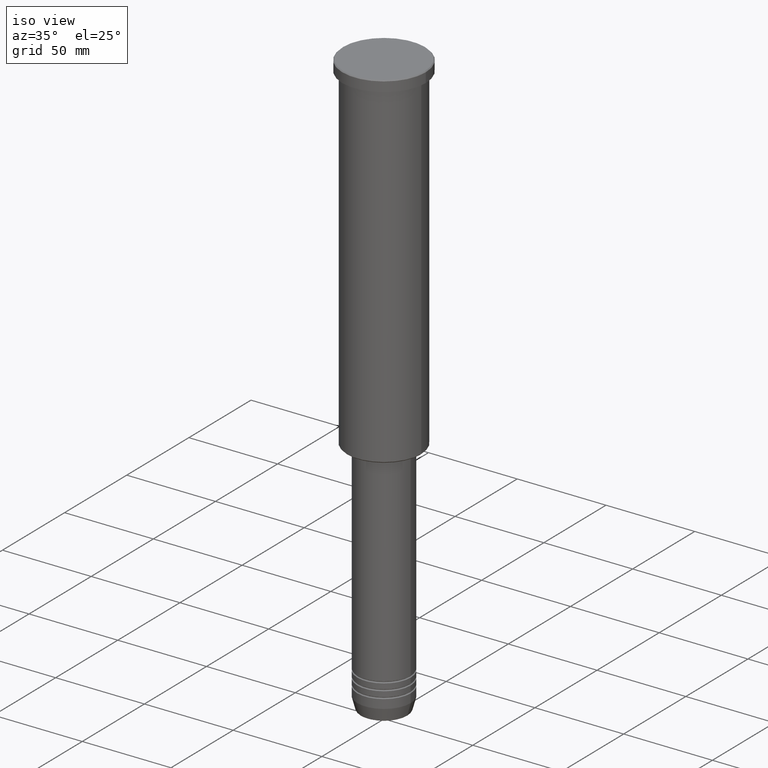
[diagram: clean part render]
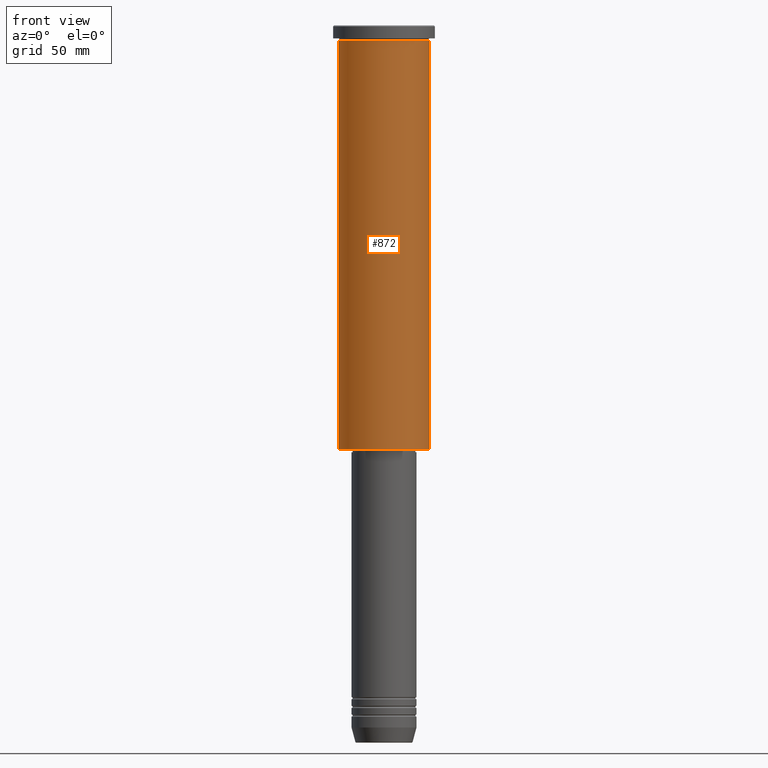
[diagram: tour spotlight — one face highlighted and labeled with its STEP entity id]
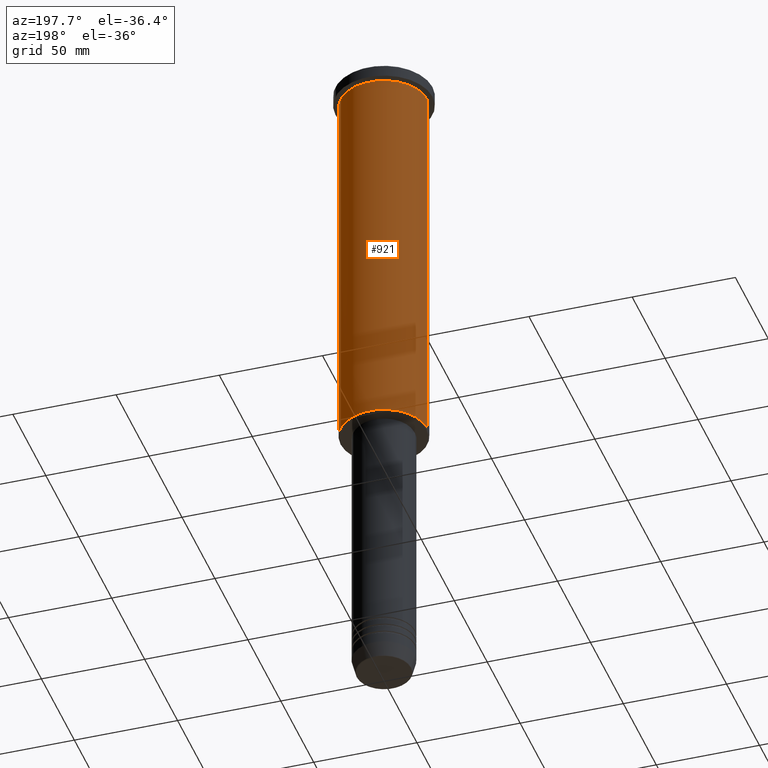
[diagram: tour spotlight — one face highlighted and labeled with its STEP entity id]
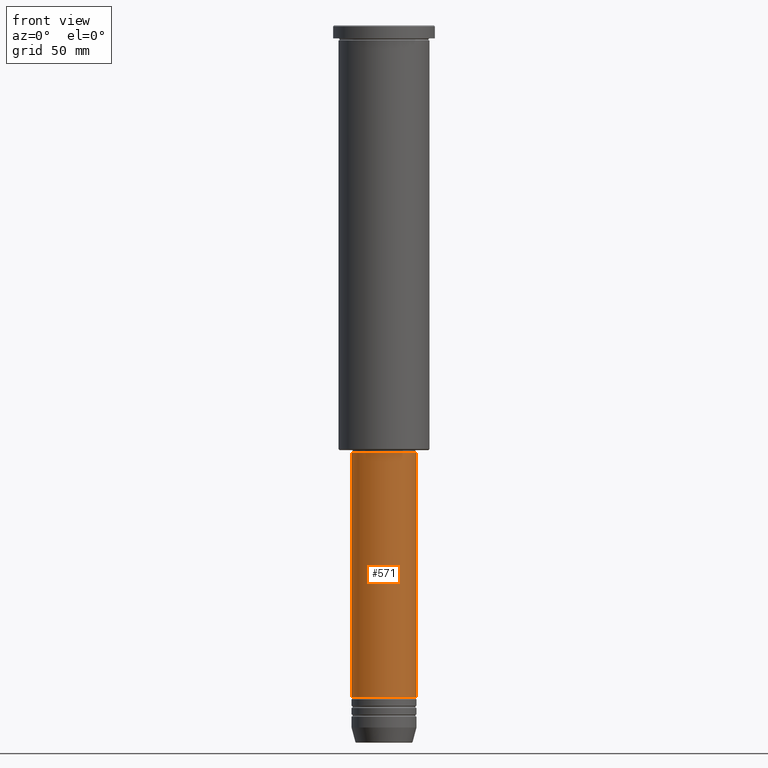
[diagram: tour spotlight — one face highlighted and labeled with its STEP entity id]
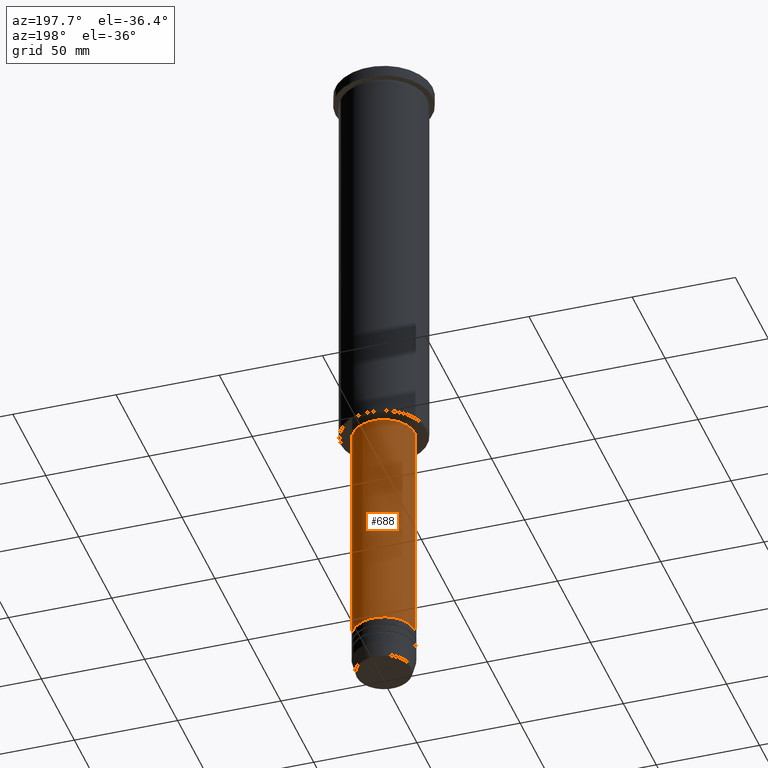
[diagram: tour spotlight — one face highlighted and labeled with its STEP entity id]
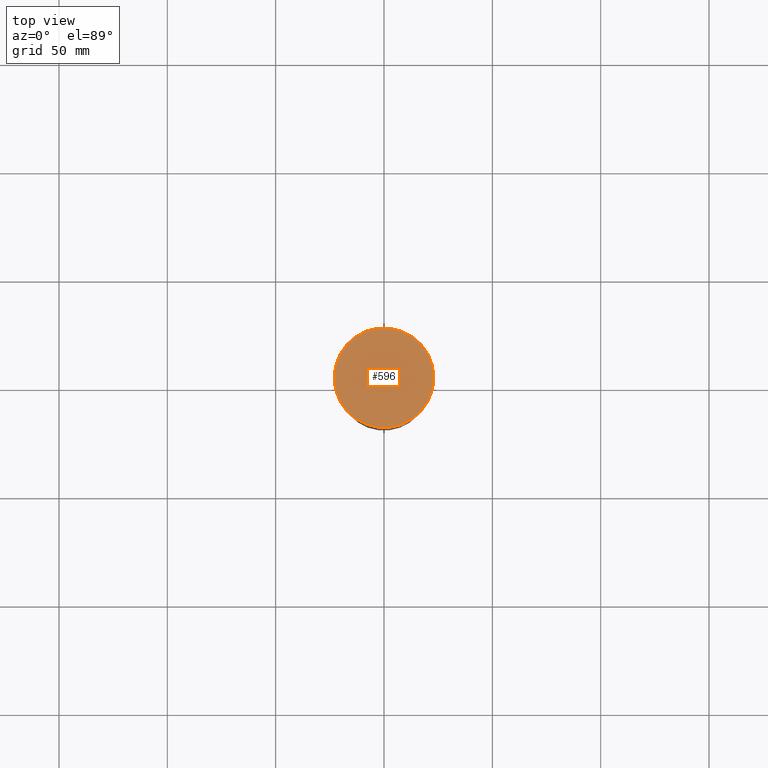
[diagram: tour spotlight — one face highlighted and labeled with its STEP entity id]
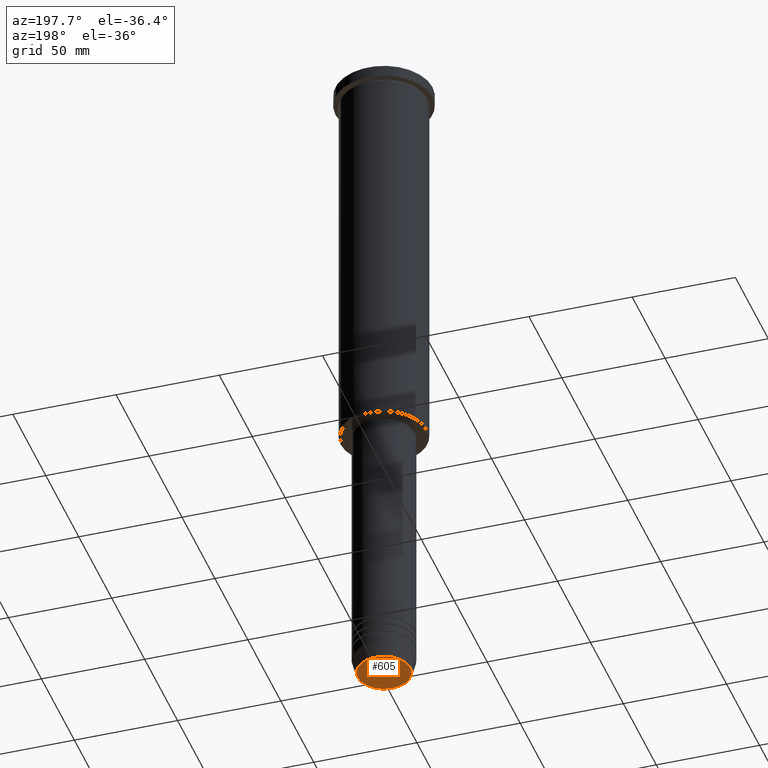
[diagram: tour spotlight — one face highlighted and labeled with its STEP entity id]
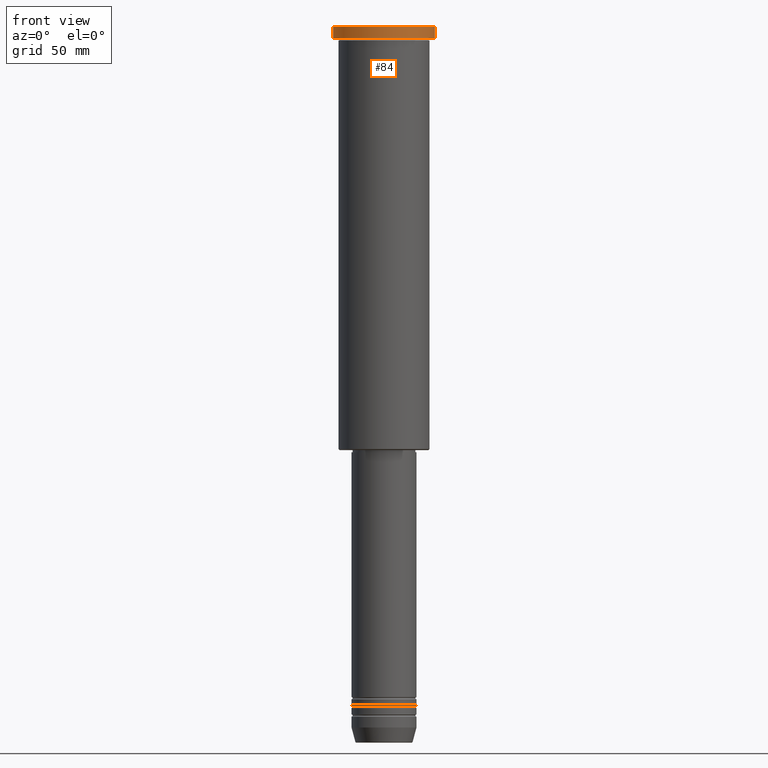
[diagram: tour spotlight — one face highlighted and labeled with its STEP entity id]
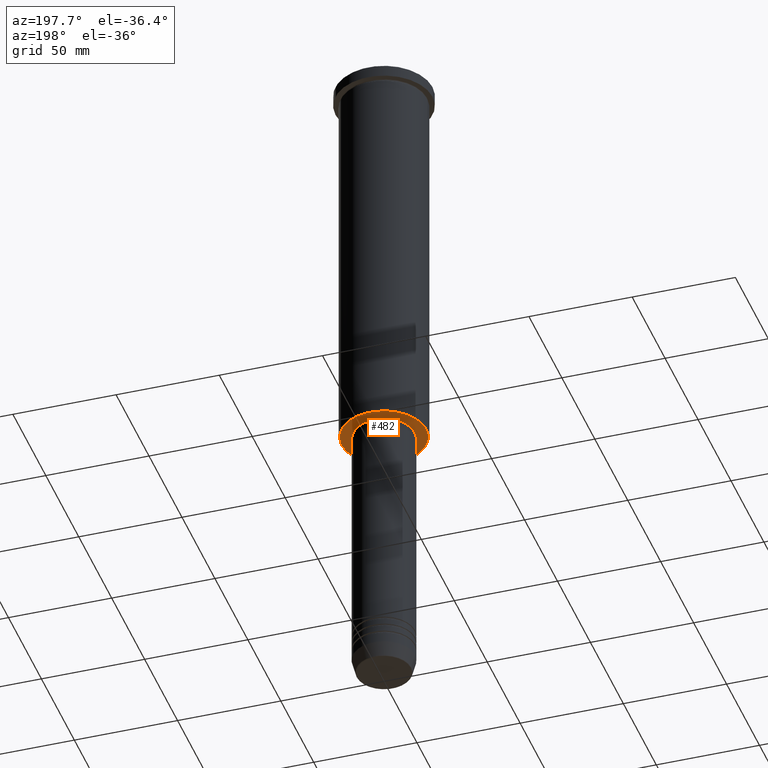
[diagram: tour spotlight — one face highlighted and labeled with its STEP entity id]
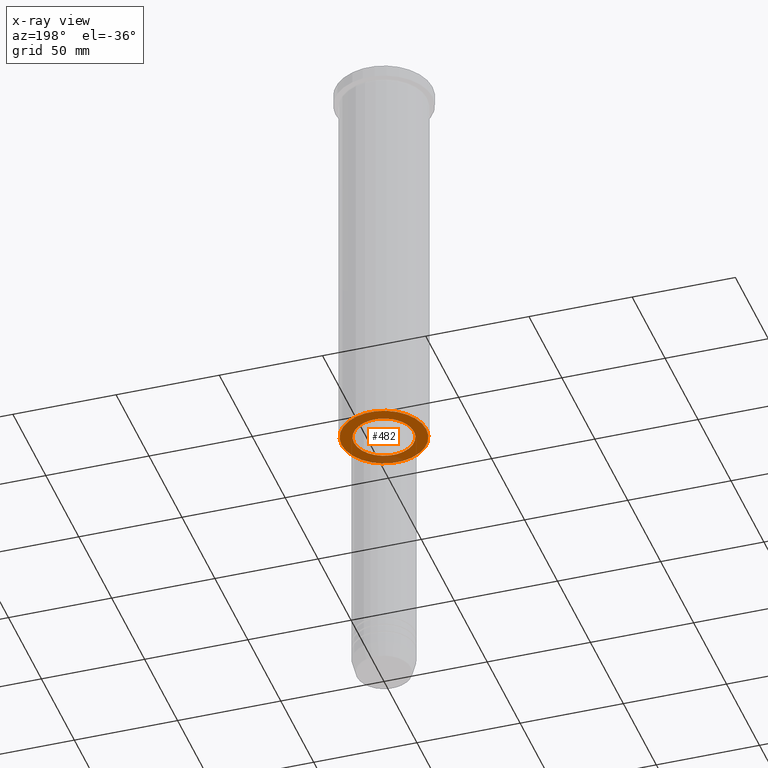
[diagram: x-ray of the same camera — body ghosted, this tour face saturated]
A machine part: a face-by-face anatomy tour. The part has 43 B-rep faces; the first image is the clean iso view, then the 8 largest visible faces are spotlighted one at a time (largest first), each with its STEP entity span.

Face 1 — front view, entity #872. In plain terms, the highlighted cylindrical surface (partial cylindrical patch) has radius 21 mm, axis along (-0, -0, 1).
Definition (entity closure, byte-faithful):
#26 = CARTESIAN_POINT ( 'NONE',  ( -21.00000000000000000, 2.571758278209441661E-15, -195.4999999999999432 ) ) ;
#58 = CYLINDRICAL_SURFACE ( 'NONE', #744, 21.00000000000000000 ) ;
#130 = AXIS2_PLACEMENT_3D ( 'NONE', #673, #389, #746 ) ;
#185 = VERTEX_POINT ( 'NONE', #660 ) ;
#189 = VECTOR ( 'NONE', #779, 1000.000000000000000 ) ;
#324 = FACE_OUTER_BOUND ( 'NONE', #1116, .T. ) ;
#359 = LINE ( 'NONE', #431, #189 ) ;
#389 = DIRECTION ( 'NONE',  ( -0.000000000000000000, -0.000000000000000000, 1.000000000000000000 ) ) ;
#403 = CARTESIAN_POINT ( 'NONE',  ( 21.00000000000000000, 0.000000000000000000, -195.4999999999999432 ) ) ;
#422 = LINE ( 'NONE', #800, #1109 ) ;
#431 = CARTESIAN_POINT ( 'NONE',  ( 21.00000000000000000, 0.000000000000000000, 0.000000000000000000 ) ) ;
#461 = DIRECTION ( 'NONE',  ( -0.000000000000000000, -0.000000000000000000, 1.000000000000000000 ) ) ;
#515 = EDGE_CURVE ( 'NONE', #630, #185, #359, .T. ) ;
#531 = CARTESIAN_POINT ( 'NONE',  ( 0.000000000000000000, 0.000000000000000000, -195.4999999999999432 ) ) ;
#583 = CARTESIAN_POINT ( 'NONE',  ( -21.00000000000000000, 2.571758278209441661E-15, -6.999999999999993783 ) ) ;
#599 = CARTESIAN_POINT ( 'NONE',  ( 0.000000000000000000, 0.000000000000000000, 0.000000000000000000 ) ) ;
#630 = VERTEX_POINT ( 'NONE', #403 ) ;
#655 = CIRCLE ( 'NONE', #1030, 21.00000000000000000 ) ;
#660 = CARTESIAN_POINT ( 'NONE',  ( 21.00000000000000000, 0.000000000000000000, -6.999999999999993783 ) ) ;
#673 = CARTESIAN_POINT ( 'NONE',  ( 0.000000000000000000, 0.000000000000000000, -6.999999999999993783 ) ) ;
#695 = ORIENTED_EDGE ( 'NONE', *, *, #1140, .T. ) ;
#713 = ORIENTED_EDGE ( 'NONE', *, *, #515, .T. ) ;
#744 = AXIS2_PLACEMENT_3D ( 'NONE', #599, #782, #947 ) ;
#746 = DIRECTION ( 'NONE',  ( 1.000000000000000000, 0.000000000000000000, 0.000000000000000000 ) ) ;
#761 = EDGE_CURVE ( 'NONE', #939, #988, #422, .T. ) ;
#779 = DIRECTION ( 'NONE',  ( -0.000000000000000000, -0.000000000000000000, 1.000000000000000000 ) ) ;
#782 = DIRECTION ( 'NONE',  ( -0.000000000000000000, -0.000000000000000000, 1.000000000000000000 ) ) ;
#800 = CARTESIAN_POINT ( 'NONE',  ( -21.00000000000000000, 2.571758278209441661E-15, 0.000000000000000000 ) ) ;
#872 = ADVANCED_FACE ( 'NONE', ( #324 ), #58, .T. ) ;
#898 = ORIENTED_EDGE ( 'NONE', *, *, #761, .F. ) ;
#939 = VERTEX_POINT ( 'NONE', #26 ) ;
#947 = DIRECTION ( 'NONE',  ( 1.000000000000000000, 0.000000000000000000, 0.000000000000000000 ) ) ;
#966 = EDGE_CURVE ( 'NONE', #988, #185, #1009, .T. ) ;
#979 = ORIENTED_EDGE ( 'NONE', *, *, #966, .F. ) ;
#988 = VERTEX_POINT ( 'NONE', #583 ) ;
#1009 = CIRCLE ( 'NONE', #130, 21.00000000000000000 ) ;
#1030 = AXIS2_PLACEMENT_3D ( 'NONE', #531, #1074, #1053 ) ;
#1053 = DIRECTION ( 'NONE',  ( -1.000000000000000000, 0.000000000000000000, 0.000000000000000000 ) ) ;
#1074 = DIRECTION ( 'NONE',  ( -0.000000000000000000, -0.000000000000000000, 1.000000000000000000 ) ) ;
#1109 = VECTOR ( 'NONE', #461, 1000.000000000000000 ) ;
#1116 = EDGE_LOOP ( 'NONE', ( #898, #695, #713, #979 ) ) ;
#1140 = EDGE_CURVE ( 'NONE', #939, #630, #655, .T. ) ;

Face 2 — auxiliary view, entity #921. In plain terms, the highlighted cylindrical surface (partial cylindrical patch) has radius 21 mm, axis along (-0, -0, 1).
Definition (entity closure, byte-faithful):
#26 = CARTESIAN_POINT ( 'NONE',  ( -21.00000000000000000, 2.571758278209441661E-15, -195.4999999999999432 ) ) ;
#90 = ORIENTED_EDGE ( 'NONE', *, *, #955, .F. ) ;
#108 = EDGE_LOOP ( 'NONE', ( #513, #888, #90, #244 ) ) ;
#185 = VERTEX_POINT ( 'NONE', #660 ) ;
#189 = VECTOR ( 'NONE', #779, 1000.000000000000000 ) ;
#244 = ORIENTED_EDGE ( 'NONE', *, *, #515, .F. ) ;
#258 = DIRECTION ( 'NONE',  ( -0.000000000000000000, -0.000000000000000000, 1.000000000000000000 ) ) ;
#299 = DIRECTION ( 'NONE',  ( -0.000000000000000000, -0.000000000000000000, 1.000000000000000000 ) ) ;
#346 = DIRECTION ( 'NONE',  ( -0.000000000000000000, -0.000000000000000000, 1.000000000000000000 ) ) ;
#359 = LINE ( 'NONE', #431, #189 ) ;
#361 = FACE_OUTER_BOUND ( 'NONE', #108, .T. ) ;
#403 = CARTESIAN_POINT ( 'NONE',  ( 21.00000000000000000, 0.000000000000000000, -195.4999999999999432 ) ) ;
#422 = LINE ( 'NONE', #800, #1109 ) ;
#431 = CARTESIAN_POINT ( 'NONE',  ( 21.00000000000000000, 0.000000000000000000, 0.000000000000000000 ) ) ;
#461 = DIRECTION ( 'NONE',  ( -0.000000000000000000, -0.000000000000000000, 1.000000000000000000 ) ) ;
#502 = EDGE_CURVE ( 'NONE', #630, #939, #1132, .T. ) ;
#513 = ORIENTED_EDGE ( 'NONE', *, *, #502, .T. ) ;
#515 = EDGE_CURVE ( 'NONE', #630, #185, #359, .T. ) ;
#583 = CARTESIAN_POINT ( 'NONE',  ( -21.00000000000000000, 2.571758278209441661E-15, -6.999999999999993783 ) ) ;
#629 = DIRECTION ( 'NONE',  ( -1.000000000000000000, 0.000000000000000000, 0.000000000000000000 ) ) ;
#630 = VERTEX_POINT ( 'NONE', #403 ) ;
#657 = CARTESIAN_POINT ( 'NONE',  ( 0.000000000000000000, 0.000000000000000000, -6.999999999999993783 ) ) ;
#660 = CARTESIAN_POINT ( 'NONE',  ( 21.00000000000000000, 0.000000000000000000, -6.999999999999993783 ) ) ;
#672 = AXIS2_PLACEMENT_3D ( 'NONE', #657, #299, #1125 ) ;
#761 = EDGE_CURVE ( 'NONE', #939, #988, #422, .T. ) ;
#779 = DIRECTION ( 'NONE',  ( -0.000000000000000000, -0.000000000000000000, 1.000000000000000000 ) ) ;
#800 = CARTESIAN_POINT ( 'NONE',  ( -21.00000000000000000, 2.571758278209441661E-15, 0.000000000000000000 ) ) ;
#814 = DIRECTION ( 'NONE',  ( 1.000000000000000000, 0.000000000000000000, 0.000000000000000000 ) ) ;
#875 = CIRCLE ( 'NONE', #672, 21.00000000000000000 ) ;
#878 = AXIS2_PLACEMENT_3D ( 'NONE', #968, #258, #629 ) ;
#888 = ORIENTED_EDGE ( 'NONE', *, *, #761, .T. ) ;
#921 = ADVANCED_FACE ( 'NONE', ( #361 ), #1165, .T. ) ;
#939 = VERTEX_POINT ( 'NONE', #26 ) ;
#955 = EDGE_CURVE ( 'NONE', #185, #988, #875, .T. ) ;
#968 = CARTESIAN_POINT ( 'NONE',  ( 0.000000000000000000, 0.000000000000000000, -195.4999999999999432 ) ) ;
#988 = VERTEX_POINT ( 'NONE', #583 ) ;
#995 = CARTESIAN_POINT ( 'NONE',  ( 0.000000000000000000, 0.000000000000000000, 0.000000000000000000 ) ) ;
#1029 = AXIS2_PLACEMENT_3D ( 'NONE', #995, #346, #814 ) ;
#1109 = VECTOR ( 'NONE', #461, 1000.000000000000000 ) ;
#1125 = DIRECTION ( 'NONE',  ( 1.000000000000000000, 0.000000000000000000, 0.000000000000000000 ) ) ;
#1132 = CIRCLE ( 'NONE', #878, 21.00000000000000000 ) ;
#1165 = CYLINDRICAL_SURFACE ( 'NONE', #1029, 21.00000000000000000 ) ;

Face 3 — front view, entity #571. In plain terms, the highlighted cylindrical surface (edge-blend (fillet) strip) has radius 15 mm, axis along (-0, -0, 1).
Definition (entity closure, byte-faithful):
#3 = AXIS2_PLACEMENT_3D ( 'NONE', #470, #20, #938 ) ;
#20 = DIRECTION ( 'NONE',  ( -0.000000000000000000, -0.000000000000000000, 1.000000000000000000 ) ) ;
#35 = EDGE_CURVE ( 'NONE', #103, #869, #990, .T. ) ;
#43 = CARTESIAN_POINT ( 'NONE',  ( 15.00000000000000000, 0.000000000000000000, -309.9999999999999432 ) ) ;
#61 = LINE ( 'NONE', #492, #896 ) ;
#103 = VERTEX_POINT ( 'NONE', #908 ) ;
#138 = VERTEX_POINT ( 'NONE', #469 ) ;
#147 = CARTESIAN_POINT ( 'NONE',  ( 15.00000000000000000, 0.000000000000000000, 0.000000000000000000 ) ) ;
#178 = CARTESIAN_POINT ( 'NONE',  ( 0.000000000000000000, 0.000000000000000000, 0.000000000000000000 ) ) ;
#188 = DIRECTION ( 'NONE',  ( -0.000000000000000000, -0.000000000000000000, 1.000000000000000000 ) ) ;
#207 = DIRECTION ( 'NONE',  ( 1.000000000000000000, 0.000000000000000000, 0.000000000000000000 ) ) ;
#255 = ORIENTED_EDGE ( 'NONE', *, *, #450, .T. ) ;
#262 = LINE ( 'NONE', #147, #724 ) ;
#303 = CIRCLE ( 'NONE', #3, 15.00000000000000000 ) ;
#408 = AXIS2_PLACEMENT_3D ( 'NONE', #178, #754, #668 ) ;
#445 = ORIENTED_EDGE ( 'NONE', *, *, #960, .F. ) ;
#450 = EDGE_CURVE ( 'NONE', #869, #138, #262, .T. ) ;
#469 = CARTESIAN_POINT ( 'NONE',  ( 15.00000000000000000, 0.000000000000000000, -196.9999999999999147 ) ) ;
#470 = CARTESIAN_POINT ( 'NONE',  ( 0.000000000000000000, 0.000000000000000000, -196.9999999999999147 ) ) ;
#477 = CARTESIAN_POINT ( 'NONE',  ( 0.000000000000000000, 0.000000000000000000, -309.9999999999999432 ) ) ;
#492 = CARTESIAN_POINT ( 'NONE',  ( -15.00000000000000000, 1.836970198721029589E-15, 0.000000000000000000 ) ) ;
#539 = AXIS2_PLACEMENT_3D ( 'NONE', #477, #1026, #207 ) ;
#555 = FACE_OUTER_BOUND ( 'NONE', #1141, .T. ) ;
#571 = ADVANCED_FACE ( 'NONE', ( #555 ), #808, .T. ) ;
#668 = DIRECTION ( 'NONE',  ( 1.000000000000000000, 0.000000000000000000, 0.000000000000000000 ) ) ;
#720 = VERTEX_POINT ( 'NONE', #768 ) ;
#724 = VECTOR ( 'NONE', #1063, 1000.000000000000000 ) ;
#754 = DIRECTION ( 'NONE',  ( -0.000000000000000000, -0.000000000000000000, 1.000000000000000000 ) ) ;
#768 = CARTESIAN_POINT ( 'NONE',  ( -15.00000000000000000, 1.836970198721029589E-15, -196.9999999999999147 ) ) ;
#803 = ORIENTED_EDGE ( 'NONE', *, *, #933, .F. ) ;
#808 = CYLINDRICAL_SURFACE ( 'NONE', #408, 15.00000000000000000 ) ;
#869 = VERTEX_POINT ( 'NONE', #43 ) ;
#896 = VECTOR ( 'NONE', #188, 1000.000000000000000 ) ;
#908 = CARTESIAN_POINT ( 'NONE',  ( -15.00000000000000000, 1.836970198721029589E-15, -309.9999999999999432 ) ) ;
#933 = EDGE_CURVE ( 'NONE', #103, #720, #61, .T. ) ;
#938 = DIRECTION ( 'NONE',  ( 1.000000000000000000, 0.000000000000000000, 0.000000000000000000 ) ) ;
#960 = EDGE_CURVE ( 'NONE', #720, #138, #303, .T. ) ;
#990 = CIRCLE ( 'NONE', #539, 15.00000000000000000 ) ;
#1026 = DIRECTION ( 'NONE',  ( -0.000000000000000000, -0.000000000000000000, 1.000000000000000000 ) ) ;
#1063 = DIRECTION ( 'NONE',  ( -0.000000000000000000, -0.000000000000000000, 1.000000000000000000 ) ) ;
#1134 = ORIENTED_EDGE ( 'NONE', *, *, #35, .T. ) ;
#1141 = EDGE_LOOP ( 'NONE', ( #803, #1134, #255, #445 ) ) ;

Face 4 — auxiliary view, entity #688. In plain terms, the highlighted cylindrical surface (edge-blend (fillet) strip) has radius 15 mm, axis along (-0, -0, 1).
Definition (entity closure, byte-faithful):
#43 = CARTESIAN_POINT ( 'NONE',  ( 15.00000000000000000, 0.000000000000000000, -309.9999999999999432 ) ) ;
#61 = LINE ( 'NONE', #492, #896 ) ;
#99 = ORIENTED_EDGE ( 'NONE', *, *, #393, .F. ) ;
#103 = VERTEX_POINT ( 'NONE', #908 ) ;
#127 = AXIS2_PLACEMENT_3D ( 'NONE', #377, #1102, #275 ) ;
#138 = VERTEX_POINT ( 'NONE', #469 ) ;
#147 = CARTESIAN_POINT ( 'NONE',  ( 15.00000000000000000, 0.000000000000000000, 0.000000000000000000 ) ) ;
#188 = DIRECTION ( 'NONE',  ( -0.000000000000000000, -0.000000000000000000, 1.000000000000000000 ) ) ;
#216 = EDGE_LOOP ( 'NONE', ( #874, #920, #99, #810 ) ) ;
#238 = CYLINDRICAL_SURFACE ( 'NONE', #282, 15.00000000000000000 ) ;
#262 = LINE ( 'NONE', #147, #724 ) ;
#266 = EDGE_CURVE ( 'NONE', #869, #103, #967, .T. ) ;
#275 = DIRECTION ( 'NONE',  ( 1.000000000000000000, 0.000000000000000000, 0.000000000000000000 ) ) ;
#282 = AXIS2_PLACEMENT_3D ( 'NONE', #1148, #1057, #514 ) ;
#377 = CARTESIAN_POINT ( 'NONE',  ( 0.000000000000000000, 0.000000000000000000, -309.9999999999999432 ) ) ;
#393 = EDGE_CURVE ( 'NONE', #138, #720, #1127, .T. ) ;
#450 = EDGE_CURVE ( 'NONE', #869, #138, #262, .T. ) ;
#469 = CARTESIAN_POINT ( 'NONE',  ( 15.00000000000000000, 0.000000000000000000, -196.9999999999999147 ) ) ;
#492 = CARTESIAN_POINT ( 'NONE',  ( -15.00000000000000000, 1.836970198721029589E-15, 0.000000000000000000 ) ) ;
#514 = DIRECTION ( 'NONE',  ( 1.000000000000000000, 0.000000000000000000, 0.000000000000000000 ) ) ;
#688 = ADVANCED_FACE ( 'NONE', ( #884 ), #238, .T. ) ;
#712 = DIRECTION ( 'NONE',  ( 1.000000000000000000, 0.000000000000000000, 0.000000000000000000 ) ) ;
#720 = VERTEX_POINT ( 'NONE', #768 ) ;
#724 = VECTOR ( 'NONE', #1063, 1000.000000000000000 ) ;
#768 = CARTESIAN_POINT ( 'NONE',  ( -15.00000000000000000, 1.836970198721029589E-15, -196.9999999999999147 ) ) ;
#770 = AXIS2_PLACEMENT_3D ( 'NONE', #854, #978, #712 ) ;
#810 = ORIENTED_EDGE ( 'NONE', *, *, #450, .F. ) ;
#854 = CARTESIAN_POINT ( 'NONE',  ( 0.000000000000000000, 0.000000000000000000, -196.9999999999999147 ) ) ;
#869 = VERTEX_POINT ( 'NONE', #43 ) ;
#874 = ORIENTED_EDGE ( 'NONE', *, *, #266, .T. ) ;
#884 = FACE_OUTER_BOUND ( 'NONE', #216, .T. ) ;
#896 = VECTOR ( 'NONE', #188, 1000.000000000000000 ) ;
#908 = CARTESIAN_POINT ( 'NONE',  ( -15.00000000000000000, 1.836970198721029589E-15, -309.9999999999999432 ) ) ;
#920 = ORIENTED_EDGE ( 'NONE', *, *, #933, .T. ) ;
#933 = EDGE_CURVE ( 'NONE', #103, #720, #61, .T. ) ;
#967 = CIRCLE ( 'NONE', #127, 15.00000000000000000 ) ;
#978 = DIRECTION ( 'NONE',  ( -0.000000000000000000, -0.000000000000000000, 1.000000000000000000 ) ) ;
#1057 = DIRECTION ( 'NONE',  ( -0.000000000000000000, -0.000000000000000000, 1.000000000000000000 ) ) ;
#1063 = DIRECTION ( 'NONE',  ( -0.000000000000000000, -0.000000000000000000, 1.000000000000000000 ) ) ;
#1102 = DIRECTION ( 'NONE',  ( -0.000000000000000000, -0.000000000000000000, 1.000000000000000000 ) ) ;
#1127 = CIRCLE ( 'NONE', #770, 15.00000000000000000 ) ;
#1148 = CARTESIAN_POINT ( 'NONE',  ( 0.000000000000000000, 0.000000000000000000, 0.000000000000000000 ) ) ;

Face 5 — top view, entity #596. In plain terms, the highlighted planar face has unit normal (0, -0, 1).
Definition (entity closure, byte-faithful):
#7 = PLANE ( 'NONE',  #240 ) ;
#56 = DIRECTION ( 'NONE',  ( -0.000000000000000000, -0.000000000000000000, 1.000000000000000000 ) ) ;
#68 = ORIENTED_EDGE ( 'NONE', *, *, #1096, .T. ) ;
#72 = AXIS2_PLACEMENT_3D ( 'NONE', #181, #1098, #725 ) ;
#181 = CARTESIAN_POINT ( 'NONE',  ( 0.000000000000000000, 0.000000000000000000, 0.000000000000000000 ) ) ;
#240 = AXIS2_PLACEMENT_3D ( 'NONE', #728, #1129, #497 ) ;
#376 = ORIENTED_EDGE ( 'NONE', *, *, #786, .T. ) ;
#388 = AXIS2_PLACEMENT_3D ( 'NONE', #412, #56, #425 ) ;
#412 = CARTESIAN_POINT ( 'NONE',  ( 0.000000000000000000, 0.000000000000000000, 0.000000000000000000 ) ) ;
#425 = DIRECTION ( 'NONE',  ( 1.000000000000000000, 0.000000000000000000, 0.000000000000000000 ) ) ;
#489 = CARTESIAN_POINT ( 'NONE',  ( -23.00000000000002487, 0.000000000000000000, 0.000000000000000000 ) ) ;
#497 = DIRECTION ( 'NONE',  ( 1.000000000000000000, 0.000000000000000000, 0.000000000000000000 ) ) ;
#550 = VERTEX_POINT ( 'NONE', #489 ) ;
#557 = EDGE_LOOP ( 'NONE', ( #376, #68 ) ) ;
#582 = CIRCLE ( 'NONE', #388, 23.00000000000002487 ) ;
#596 = ADVANCED_FACE ( 'NONE', ( #1027 ), #7, .T. ) ;
#598 = CIRCLE ( 'NONE', #72, 23.00000000000002487 ) ;
#611 = CARTESIAN_POINT ( 'NONE',  ( 23.00000000000002487, 2.847303808017597717E-15, 0.000000000000000000 ) ) ;
#641 = VERTEX_POINT ( 'NONE', #611 ) ;
#725 = DIRECTION ( 'NONE',  ( 1.000000000000000000, 0.000000000000000000, 0.000000000000000000 ) ) ;
#728 = CARTESIAN_POINT ( 'NONE',  ( 0.000000000000000000, 0.000000000000000000, 0.000000000000000000 ) ) ;
#786 = EDGE_CURVE ( 'NONE', #550, #641, #598, .T. ) ;
#1027 = FACE_OUTER_BOUND ( 'NONE', #557, .T. ) ;
#1096 = EDGE_CURVE ( 'NONE', #641, #550, #582, .T. ) ;
#1098 = DIRECTION ( 'NONE',  ( -0.000000000000000000, -0.000000000000000000, 1.000000000000000000 ) ) ;
#1129 = DIRECTION ( 'NONE',  ( 0.000000000000000000, -0.000000000000000000, 1.000000000000000000 ) ) ;

Face 6 — auxiliary view, entity #605. In plain terms, the highlighted planar face has unit normal (0, -0, 1).
Definition (entity closure, byte-faithful):
#57 = ORIENTED_EDGE ( 'NONE', *, *, #248, .T. ) ;
#60 = EDGE_LOOP ( 'NONE', ( #57, #942 ) ) ;
#245 = AXIS2_PLACEMENT_3D ( 'NONE', #906, #273, #850 ) ;
#248 = EDGE_CURVE ( 'NONE', #639, #570, #594, .T. ) ;
#273 = DIRECTION ( 'NONE',  ( 0.000000000000000000, -0.000000000000000000, 1.000000000000000000 ) ) ;
#363 = DIRECTION ( 'NONE',  ( 0.000000000000000000, 0.000000000000000000, -1.000000000000000000 ) ) ;
#455 = CARTESIAN_POINT ( 'NONE',  ( 0.000000000000000000, 0.000000000000000000, -331.0000000000000000 ) ) ;
#487 = DIRECTION ( 'NONE',  ( 1.000000000000000000, 0.000000000000000000, 0.000000000000000000 ) ) ;
#570 = VERTEX_POINT ( 'NONE', #934 ) ;
#594 = CIRCLE ( 'NONE', #1004, 12.74069215899265828 ) ;
#605 = ADVANCED_FACE ( 'NONE', ( #1100 ), #1136, .F. ) ;
#639 = VERTEX_POINT ( 'NONE', #943 ) ;
#796 = AXIS2_PLACEMENT_3D ( 'NONE', #455, #363, #487 ) ;
#812 = CARTESIAN_POINT ( 'NONE',  ( 0.000000000000000000, 0.000000000000000000, -331.0000000000000000 ) ) ;
#850 = DIRECTION ( 'NONE',  ( 1.000000000000000000, 0.000000000000000000, 0.000000000000000000 ) ) ;
#867 = EDGE_CURVE ( 'NONE', #570, #639, #1131, .T. ) ;
#906 = CARTESIAN_POINT ( 'NONE',  ( 0.000000000000000000, 0.000000000000000000, -331.0000000000000000 ) ) ;
#925 = DIRECTION ( 'NONE',  ( 1.000000000000000000, 0.000000000000000000, 0.000000000000000000 ) ) ;
#934 = CARTESIAN_POINT ( 'NONE',  ( -12.74069215899265828, 1.589857736427680246E-15, -331.0000000000000000 ) ) ;
#942 = ORIENTED_EDGE ( 'NONE', *, *, #867, .T. ) ;
#943 = CARTESIAN_POINT ( 'NONE',  ( 12.74069215899265828, 0.000000000000000000, -331.0000000000000000 ) ) ;
#1003 = DIRECTION ( 'NONE',  ( 0.000000000000000000, 0.000000000000000000, -1.000000000000000000 ) ) ;
#1004 = AXIS2_PLACEMENT_3D ( 'NONE', #812, #1003, #925 ) ;
#1100 = FACE_OUTER_BOUND ( 'NONE', #60, .T. ) ;
#1131 = CIRCLE ( 'NONE', #796, 12.74069215899265828 ) ;
#1136 = PLANE ( 'NONE',  #245 ) ;

Face 7 — front view, entity #84. In plain terms, the highlighted cylindrical surface (partial cylindrical patch) has radius 23.5 mm, axis along (-0, -0, 1).
Definition (entity closure, byte-faithful):
#71 = VERTEX_POINT ( 'NONE', #472 ) ;
#84 = ADVANCED_FACE ( 'NONE', ( #1105 ), #862, .T. ) ;
#149 = CARTESIAN_POINT ( 'NONE',  ( 23.50000000000000000, 0.000000000000000000, 0.000000000000000000 ) ) ;
#151 = CARTESIAN_POINT ( 'NONE',  ( 23.50000000000000000, 0.000000000000000000, -5.999999999999993783 ) ) ;
#187 = VECTOR ( 'NONE', #642, 1000.000000000000000 ) ;
#198 = DIRECTION ( 'NONE',  ( 1.000000000000000000, 0.000000000000000000, 0.000000000000000000 ) ) ;
#214 = CARTESIAN_POINT ( 'NONE',  ( 23.50000000000000000, 0.000000000000000000, -0.5000000000000004441 ) ) ;
#243 = DIRECTION ( 'NONE',  ( 1.000000000000000000, 0.000000000000000000, 0.000000000000000000 ) ) ;
#274 = ORIENTED_EDGE ( 'NONE', *, *, #681, .T. ) ;
#340 = AXIS2_PLACEMENT_3D ( 'NONE', #373, #573, #198 ) ;
#373 = CARTESIAN_POINT ( 'NONE',  ( 0.000000000000000000, 0.000000000000000000, 0.000000000000000000 ) ) ;
#381 = VERTEX_POINT ( 'NONE', #214 ) ;
#423 = EDGE_CURVE ( 'NONE', #381, #734, #932, .T. ) ;
#426 = AXIS2_PLACEMENT_3D ( 'NONE', #1170, #722, #243 ) ;
#437 = VERTEX_POINT ( 'NONE', #151 ) ;
#463 = EDGE_LOOP ( 'NONE', ( #1040, #1084, #274, #1101 ) ) ;
#472 = CARTESIAN_POINT ( 'NONE',  ( -23.50000000000000000, 2.877919977996280320E-15, -5.999999999999993783 ) ) ;
#503 = CIRCLE ( 'NONE', #762, 23.50000000000000000 ) ;
#537 = EDGE_CURVE ( 'NONE', #71, #734, #993, .T. ) ;
#548 = EDGE_CURVE ( 'NONE', #71, #437, #503, .T. ) ;
#573 = DIRECTION ( 'NONE',  ( -0.000000000000000000, -0.000000000000000000, 1.000000000000000000 ) ) ;
#642 = DIRECTION ( 'NONE',  ( -0.000000000000000000, -0.000000000000000000, 1.000000000000000000 ) ) ;
#681 = EDGE_CURVE ( 'NONE', #437, #381, #777, .T. ) ;
#722 = DIRECTION ( 'NONE',  ( 0.000000000000000000, 0.000000000000000000, -1.000000000000000000 ) ) ;
#734 = VERTEX_POINT ( 'NONE', #949 ) ;
#750 = CARTESIAN_POINT ( 'NONE',  ( -23.50000000000000000, 2.877919977996280320E-15, 0.000000000000000000 ) ) ;
#762 = AXIS2_PLACEMENT_3D ( 'NONE', #997, #1034, #940 ) ;
#777 = LINE ( 'NONE', #149, #793 ) ;
#787 = DIRECTION ( 'NONE',  ( -0.000000000000000000, -0.000000000000000000, 1.000000000000000000 ) ) ;
#793 = VECTOR ( 'NONE', #787, 1000.000000000000000 ) ;
#862 = CYLINDRICAL_SURFACE ( 'NONE', #340, 23.50000000000000000 ) ;
#932 = CIRCLE ( 'NONE', #426, 23.50000000000000000 ) ;
#940 = DIRECTION ( 'NONE',  ( 1.000000000000000000, 0.000000000000000000, 0.000000000000000000 ) ) ;
#949 = CARTESIAN_POINT ( 'NONE',  ( -23.50000000000000000, 2.877919977996280320E-15, -0.5000000000000004441 ) ) ;
#993 = LINE ( 'NONE', #750, #187 ) ;
#997 = CARTESIAN_POINT ( 'NONE',  ( 0.000000000000000000, 0.000000000000000000, -5.999999999999993783 ) ) ;
#1034 = DIRECTION ( 'NONE',  ( -0.000000000000000000, -0.000000000000000000, 1.000000000000000000 ) ) ;
#1040 = ORIENTED_EDGE ( 'NONE', *, *, #537, .F. ) ;
#1084 = ORIENTED_EDGE ( 'NONE', *, *, #548, .T. ) ;
#1101 = ORIENTED_EDGE ( 'NONE', *, *, #423, .T. ) ;
#1105 = FACE_OUTER_BOUND ( 'NONE', #463, .T. ) ;
#1170 = CARTESIAN_POINT ( 'NONE',  ( 0.000000000000000000, 0.000000000000000000, -0.5000000000000004441 ) ) ;

Face 8 — auxiliary view, entity #482. An x-ray twin of the same camera follows (body ghosted, this face saturated) — the face is partly hidden behind the body. In plain terms, the highlighted planar face has unit normal (0, 0, -1).
Definition (entity closure, byte-faithful):
#21 = CIRCLE ( 'NONE', #73, 14.49999999999999822 ) ;
#42 = EDGE_CURVE ( 'NONE', #749, #826, #21, .T. ) ;
#51 = CIRCLE ( 'NONE', #579, 20.49999999999996447 ) ;
#63 = CARTESIAN_POINT ( 'NONE',  ( 0.000000000000000000, 0.000000000000000000, -196.0000000000000000 ) ) ;
#73 = AXIS2_PLACEMENT_3D ( 'NONE', #118, #1021, #199 ) ;
#78 = DIRECTION ( 'NONE',  ( -1.000000000000000000, 0.000000000000000000, 0.000000000000000000 ) ) ;
#118 = CARTESIAN_POINT ( 'NONE',  ( 0.000000000000000000, 0.000000000000000000, -195.9999999999999716 ) ) ;
#154 = DIRECTION ( 'NONE',  ( -0.000000000000000000, -0.000000000000000000, 1.000000000000000000 ) ) ;
#177 = ORIENTED_EDGE ( 'NONE', *, *, #807, .T. ) ;
#199 = DIRECTION ( 'NONE',  ( 1.000000000000000000, 0.000000000000000000, 0.000000000000000000 ) ) ;
#229 = CARTESIAN_POINT ( 'NONE',  ( -20.49999999999996447, 2.541142108230755902E-15, -196.0000000000000000 ) ) ;
#234 = DIRECTION ( 'NONE',  ( 0.000000000000000000, 0.000000000000000000, -1.000000000000000000 ) ) ;
#250 = CARTESIAN_POINT ( 'NONE',  ( 20.49999999999996447, 0.000000000000000000, -196.0000000000000000 ) ) ;
#356 = VERTEX_POINT ( 'NONE', #229 ) ;
#372 = CIRCLE ( 'NONE', #1031, 14.49999999999999822 ) ;
#404 = CIRCLE ( 'NONE', #1062, 20.49999999999996447 ) ;
#435 = PLANE ( 'NONE',  #704 ) ;
#438 = EDGE_CURVE ( 'NONE', #356, #488, #51, .T. ) ;
#440 = DIRECTION ( 'NONE',  ( 0.000000000000000000, 0.000000000000000000, -1.000000000000000000 ) ) ;
#452 = FACE_BOUND ( 'NONE', #928, .T. ) ;
#476 = EDGE_CURVE ( 'NONE', #488, #356, #404, .T. ) ;
#482 = ADVANCED_FACE ( 'NONE', ( #1058, #452 ), #435, .T. ) ;
#488 = VERTEX_POINT ( 'NONE', #250 ) ;
#518 = ORIENTED_EDGE ( 'NONE', *, *, #438, .T. ) ;
#579 = AXIS2_PLACEMENT_3D ( 'NONE', #63, #881, #78 ) ;
#704 = AXIS2_PLACEMENT_3D ( 'NONE', #784, #234, #1086 ) ;
#707 = DIRECTION ( 'NONE',  ( 1.000000000000000000, 0.000000000000000000, 0.000000000000000000 ) ) ;
#749 = VERTEX_POINT ( 'NONE', #956 ) ;
#784 = CARTESIAN_POINT ( 'NONE',  ( 0.000000000000000000, 21.00000000000000000, -196.0000000000000000 ) ) ;
#798 = CARTESIAN_POINT ( 'NONE',  ( 0.000000000000000000, 0.000000000000000000, -196.0000000000000000 ) ) ;
#804 = CARTESIAN_POINT ( 'NONE',  ( 0.000000000000000000, 0.000000000000000000, -195.9999999999999716 ) ) ;
#807 = EDGE_CURVE ( 'NONE', #826, #749, #372, .T. ) ;
#826 = VERTEX_POINT ( 'NONE', #895 ) ;
#881 = DIRECTION ( 'NONE',  ( 0.000000000000000000, 0.000000000000000000, -1.000000000000000000 ) ) ;
#895 = CARTESIAN_POINT ( 'NONE',  ( -14.49999999999999822, 1.775737858763662015E-15, -195.9999999999999716 ) ) ;
#928 = EDGE_LOOP ( 'NONE', ( #962, #177 ) ) ;
#956 = CARTESIAN_POINT ( 'NONE',  ( 14.49999999999999822, 0.000000000000000000, -195.9999999999999716 ) ) ;
#962 = ORIENTED_EDGE ( 'NONE', *, *, #42, .T. ) ;
#1021 = DIRECTION ( 'NONE',  ( -0.000000000000000000, -0.000000000000000000, 1.000000000000000000 ) ) ;
#1031 = AXIS2_PLACEMENT_3D ( 'NONE', #804, #154, #707 ) ;
#1058 = FACE_OUTER_BOUND ( 'NONE', #1106, .T. ) ;
#1062 = AXIS2_PLACEMENT_3D ( 'NONE', #798, #440, #1073 ) ;
#1073 = DIRECTION ( 'NONE',  ( -1.000000000000000000, 0.000000000000000000, 0.000000000000000000 ) ) ;
#1086 = DIRECTION ( 'NONE',  ( -1.000000000000000000, 0.000000000000000000, -0.000000000000000000 ) ) ;
#1106 = EDGE_LOOP ( 'NONE', ( #1173, #518 ) ) ;
#1173 = ORIENTED_EDGE ( 'NONE', *, *, #476, .T. ) ;